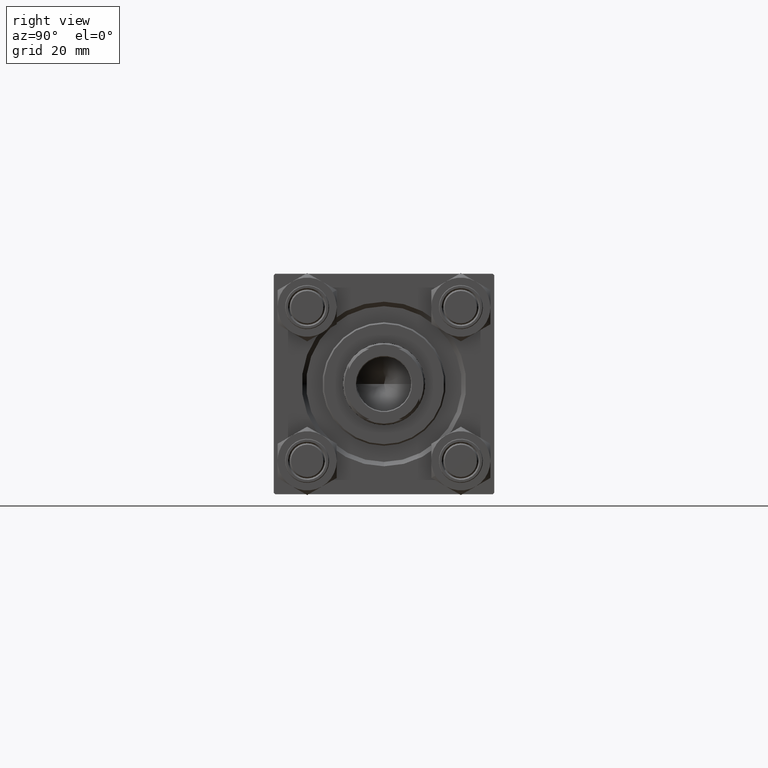
[diagram: clean part render]
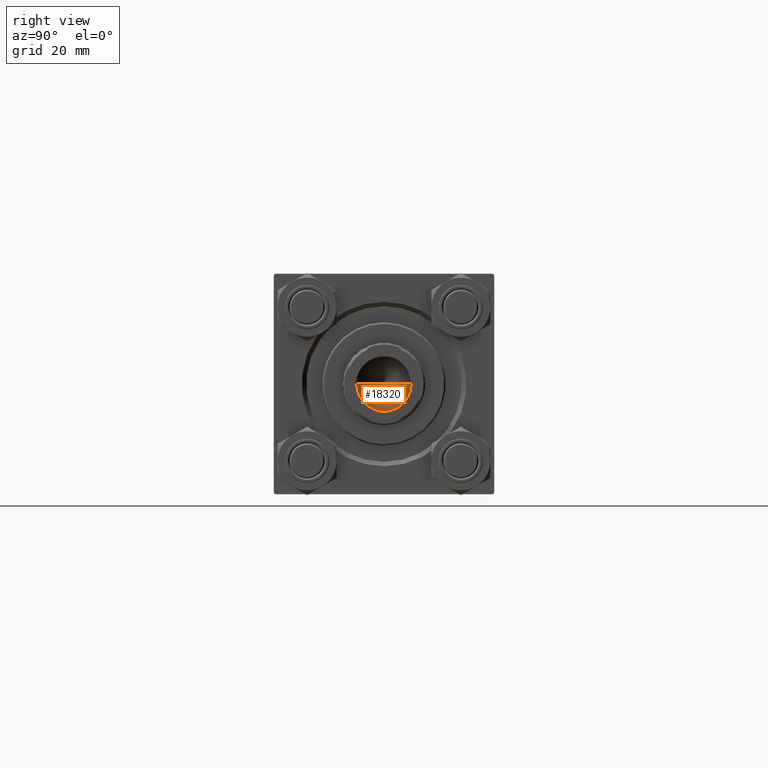
[diagram: same view with one face highlighted and labeled with its STEP entity id]
A machine part, right view. The second image highlights one B-rep face of the part: STEP entity #18320.
In plain terms, the highlighted conical surface has half-angle 59 deg.
Its self-contained STEP definition (entity closure, byte-faithful):
#1530 = DIRECTION ( 'NONE',  ( 0.8571673007021117785, 0.000000000000000000, 0.5150380749100550437 ) ) ;
#2585 = EDGE_LOOP ( 'NONE', ( #34636, #41666, #23387 ) ) ;
#5985 = DIRECTION ( 'NONE',  ( 1.000000000000000000, 0.000000000000000000, 0.000000000000000000 ) ) ;
#8421 = CARTESIAN_POINT ( 'NONE',  ( 0.000000000000000000, 0.000000000000000000, 107.0000000000000142 ) ) ;
#8898 = AXIS2_PLACEMENT_3D ( 'NONE', #29144, #35955, #5985 ) ;
#11437 = EDGE_CURVE ( 'NONE', #42372, #23266, #23941, .T. ) ;
#11673 = CARTESIAN_POINT ( 'NONE',  ( -9.769621978240258809E-15, 0.000000000000000000, 101.4420392739950785 ) ) ;
#17172 = CARTESIAN_POINT ( 'NONE',  ( 9.249999999999992895, 0.000000000000000000, 107.0000000000000142 ) ) ;
#17626 = VECTOR ( 'NONE', #1530, 1000.000000000000000 ) ;
#17853 = CARTESIAN_POINT ( 'NONE',  ( -9.249999999999992895, 1.132798289211300712E-15, 107.0000000000000142 ) ) ;
#18320 = ADVANCED_FACE ( 'NONE', ( #36190 ), #27379, .F. ) ;
#19166 = DIRECTION ( 'NONE',  ( -0.8571673007021117785, 1.049727191138617956E-16, 0.5150380749100550437 ) ) ;
#23266 = VERTEX_POINT ( 'NONE', #17172 ) ;
#23387 = ORIENTED_EDGE ( 'NONE', *, *, #36989, .T. ) ;
#23941 = LINE ( 'NONE', #39784, #17626 ) ;
#27379 = CONICAL_SURFACE ( 'NONE', #8898, 9.249999999999992895, 1.029744258676653423 ) ;
#27438 = EDGE_CURVE ( 'NONE', #42372, #35741, #33524, .T. ) ;
#29144 = CARTESIAN_POINT ( 'NONE',  ( 0.000000000000000000, 0.000000000000000000, 107.0000000000000142 ) ) ;
#30276 = AXIS2_PLACEMENT_3D ( 'NONE', #8421, #34848, #46413 ) ;
#30881 = VECTOR ( 'NONE', #19166, 1000.000000000000000 ) ;
#33524 = LINE ( 'NONE', #45598, #30881 ) ;
#34636 = ORIENTED_EDGE ( 'NONE', *, *, #27438, .F. ) ;
#34848 = DIRECTION ( 'NONE',  ( -0.000000000000000000, -0.000000000000000000, 1.000000000000000000 ) ) ;
#35741 = VERTEX_POINT ( 'NONE', #17853 ) ;
#35955 = DIRECTION ( 'NONE',  ( -0.000000000000000000, -0.000000000000000000, 1.000000000000000000 ) ) ;
#36190 = FACE_OUTER_BOUND ( 'NONE', #2585, .T. ) ;
#36989 = EDGE_CURVE ( 'NONE', #23266, #35741, #39108, .T. ) ;
#39108 = CIRCLE ( 'NONE', #30276, 9.249999999999992895 ) ;
#39784 = CARTESIAN_POINT ( 'NONE',  ( 9.249999999999992895, 0.000000000000000000, 107.0000000000000142 ) ) ;
#41666 = ORIENTED_EDGE ( 'NONE', *, *, #11437, .T. ) ;
#42372 = VERTEX_POINT ( 'NONE', #11673 ) ;
#45598 = CARTESIAN_POINT ( 'NONE',  ( -9.249999999999992895, 1.132798289211300712E-15, 107.0000000000000142 ) ) ;
#46413 = DIRECTION ( 'NONE',  ( 1.000000000000000000, 0.000000000000000000, 0.000000000000000000 ) ) ;